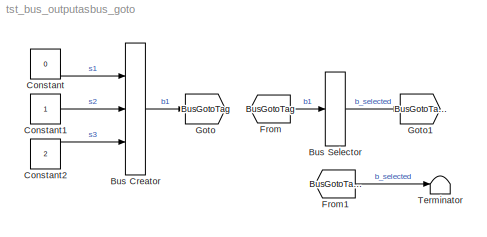
MODEL tst_bus_outputasbus_goto
KIND model
BLOCK [BusCreator] Bus Creator
  DisplayOption = bar
  Inputs = 3
  Ports = [3, 1]
  SID = 1
BLOCK [BusSelector] Bus Selector
  OutputAsBus = on
  OutputSignals = s2,s3
  Ports = [1, 1]
  SID = 2
BLOCK [Constant] Constant
  SID = 3
  Value = 0
BLOCK [Constant] Constant1
  SID = 7
BLOCK [Constant] Constant2
  SID = 4
  Value = 2
BLOCK [From] From
  GotoTag = BusGotoTag
  SID = 16
BLOCK [From] From1
  GotoTag = BusGotoTag2
  SID = 18
BLOCK [Goto] Goto
  GotoTag = BusGotoTag
  SID = 17
BLOCK [Goto] Goto1
  GotoTag = BusGotoTag2
  SID = 19
BLOCK [Terminator] Terminator
  SID = 5
LINE Bus Creator:1 -> Goto:1
LINE Bus Selector:1 -> Goto1:1
LINE Constant1:1 -> Bus Creator:2
LINE Constant2:1 -> Bus Creator:3
LINE Constant:1 -> Bus Creator:1
LINE From1:1 -> Terminator:1
LINE From:1 -> Bus Selector:1
